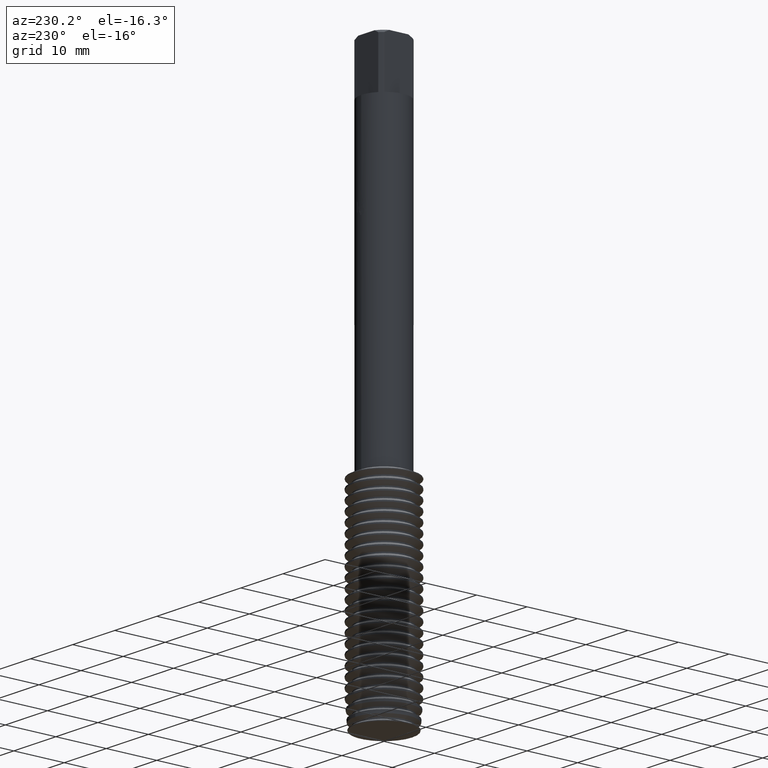
[diagram: clean part render]
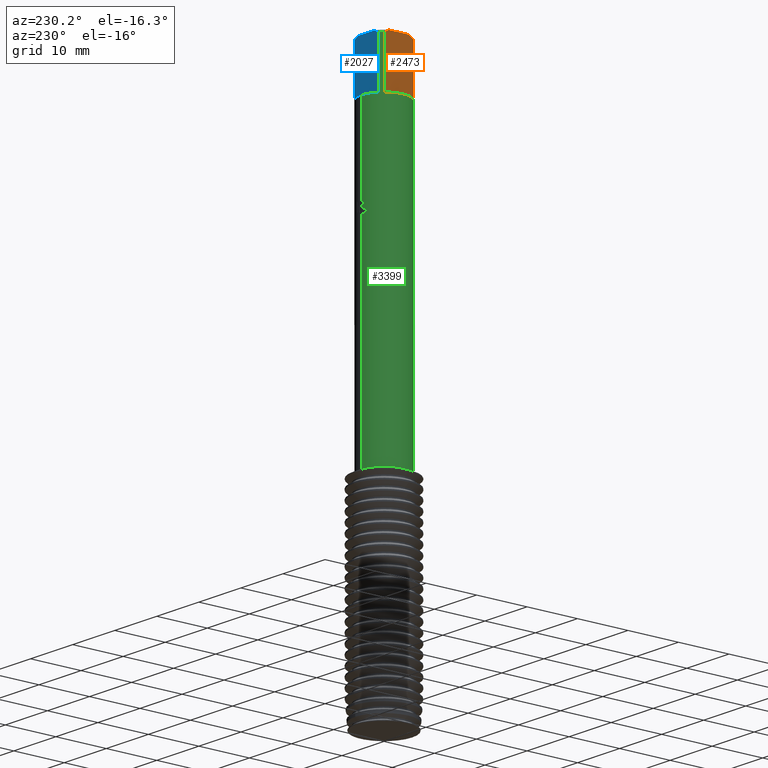
[diagram: same view with three faces highlighted in distinct colors, each labeled with its STEP entity id]
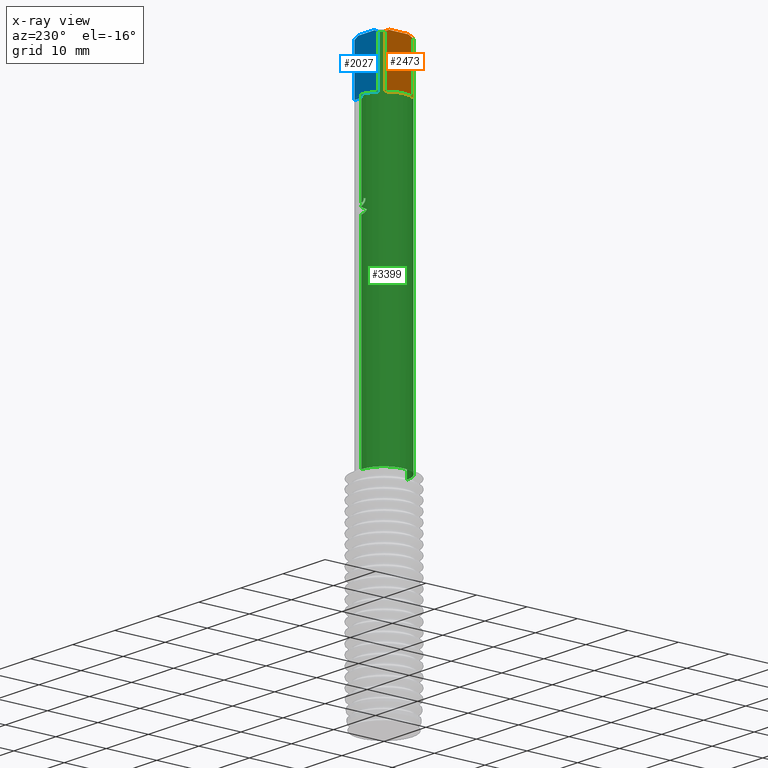
[diagram: x-ray of the same camera — body ghosted, the three highlighted faces saturated]
A machine part, auxiliary view with three faces highlighted in distinct colors.
The next image is the same camera in x-ray (body ghosted, the three faces saturated) — at least one of them is partly hidden behind the body in this view.
Their STEP definitions:

[orange] entity #2473 — the highlighted planar face has unit normal (-1, 0, 0).
#1187=EDGE_CURVE('',#2423,#2649,#3495,.T.);
#2021=EDGE_CURVE('',#2649,#2865,#4417,.T.);
#2093=VERTEX_POINT('',#4494);
#2409=VERTEX_POINT('',#4843);
#2423=VERTEX_POINT('',#4857);
#2473=ADVANCED_FACE('',(#4910),#4911,.T.);
#2521=EDGE_CURVE('',#2093,#2409,#4963,.T.);
#2649=VERTEX_POINT('',#5104);
#2865=VERTEX_POINT('',#5342);
#2935=EDGE_CURVE('',#3387,#2423,#5420,.T.);
#3275=EDGE_CURVE('',#2409,#3387,#5793,.T.);
#3387=VERTEX_POINT('',#5918);
#3433=EDGE_CURVE('',#2865,#2093,#5967,.T.);
#3495=LINE('',#6028,#6029);
#4417=LINE('',#7341,#7342);
#4494=CARTESIAN_POINT('',(-3.5,2.82842712474619,-0.5));
#4843=CARTESIAN_POINT('',(-3.5,1.93649167310371,0.0));
#4857=CARTESIAN_POINT('',(-3.5,-2.82842712474619,-0.5));
#4910=FACE_OUTER_BOUND('',#8069,.T.);
#4911=PLANE('',#8070);
#4963=(B_SPLINE_CURVE(2,(#8152,#8153,#8154),.UNSPECIFIED.,.F.,.F.)B_SPLINE_CURVE_WITH_KNOTS((3,3),(0.0,1.02290682797908),.UNSPECIFIED.)RATIONAL_B_SPLINE_CURVE((1.0,1.00555141588971,1.0))BOUNDED_CURVE()REPRESENTATION_ITEM('')GEOMETRIC_REPRESENTATION_ITEM()CURVE());
#5104=CARTESIAN_POINT('',(-3.5,-2.82842712474619,-10.0));
#5342=CARTESIAN_POINT('',(-3.5,2.82842712474619,-10.0));
#5420=(B_SPLINE_CURVE(2,(#8815,#8816,#8817),.UNSPECIFIED.,.F.,.F.)B_SPLINE_CURVE_WITH_KNOTS((3,3),(0.0,1.02290682797908),.UNSPECIFIED.)RATIONAL_B_SPLINE_CURVE((1.0,1.00555141588971,1.0))BOUNDED_CURVE()REPRESENTATION_ITEM('')GEOMETRIC_REPRESENTATION_ITEM()CURVE());
#5793=LINE('',#9342,#9343);
#5918=CARTESIAN_POINT('',(-3.5,-1.93649167310371,0.0));
#5967=LINE('',#9577,#9578);
#6028=CARTESIAN_POINT('',(-3.5,-2.82842712474619,-5.25));
#6029=VECTOR('',#9644,1.0);
#7341=CARTESIAN_POINT('',(-3.5,0.0,-10.0));
#7342=VECTOR('',#10822,1.0);
#8069=EDGE_LOOP('',(#11450,#11451,#11452,#11453,#11454,#11455));
#8070=AXIS2_PLACEMENT_3D('',#11456,#11457,#11458);
#8152=CARTESIAN_POINT('',(-3.5,2.82842712474619,-0.5));
#8153=CARTESIAN_POINT('',(-3.5,2.3562260032884,-0.203203008829607));
#8154=CARTESIAN_POINT('',(-3.5,1.93649167310371,5.55111512312578E-017));
#8815=CARTESIAN_POINT('',(-3.5,-1.93649167310371,5.55111512312578E-017));
#8816=CARTESIAN_POINT('',(-3.5,-2.3562260032884,-0.203203008829607));
#8817=CARTESIAN_POINT('',(-3.5,-2.82842712474619,-0.5));
#9342=CARTESIAN_POINT('',(-3.5,1.0,0.0));
#9343=VECTOR('',#12573,1.0);
#9577=CARTESIAN_POINT('',(-3.5,2.82842712474619,-5.25));
#9578=VECTOR('',#12817,1.0);
#9644=DIRECTION('',(0.0,0.0,-1.0));
#10822=DIRECTION('',(0.0,1.0,0.0));
#11450=ORIENTED_EDGE('',*,*,#3433,.F.);
#11451=ORIENTED_EDGE('',*,*,#2021,.F.);
#11452=ORIENTED_EDGE('',*,*,#1187,.F.);
#11453=ORIENTED_EDGE('',*,*,#2935,.F.);
#11454=ORIENTED_EDGE('',*,*,#3275,.F.);
#11455=ORIENTED_EDGE('',*,*,#2521,.F.);
#11456=CARTESIAN_POINT('',(-3.5,0.0,-4.5));
#11457=DIRECTION('',(-1.0,0.0,0.0));
#11458=DIRECTION('',(0.0,0.0,-1.0));
#12573=DIRECTION('',(-0.0,-1.0,0.0));
#12817=DIRECTION('',(-0.0,-0.0,1.0));

[blue] entity #2027 — the highlighted planar face has unit normal (0, 1, 0).
#1183=VERTEX_POINT('',#3490);
#1335=EDGE_CURVE('',#1645,#1183,#3663,.T.);
#1493=VERTEX_POINT('',#3834);
#1523=VERTEX_POINT('',#3866);
#1641=EDGE_CURVE('',#1493,#1645,#3997,.T.);
#1645=VERTEX_POINT('',#4001);
#2027=ADVANCED_FACE('',(#4423),#4424,.T.);
#2073=EDGE_CURVE('',#1523,#2821,#4473,.T.);
#2325=EDGE_CURVE('',#3361,#1523,#4753,.T.);
#2517=EDGE_CURVE('',#1183,#3361,#4959,.T.);
#2821=VERTEX_POINT('',#5294);
#2915=EDGE_CURVE('',#2821,#1493,#5399,.T.);
#3361=VERTEX_POINT('',#5887);
#3490=CARTESIAN_POINT('',(-1.93649167310371,3.5,0.0));
#3663=LINE('',#6253,#6254);
#3834=CARTESIAN_POINT('',(2.82842712474619,3.5,-0.5));
#3866=CARTESIAN_POINT('',(-2.82842712474619,3.5,-10.0));
#3997=(B_SPLINE_CURVE(2,(#6768,#6769,#6770),.UNSPECIFIED.,.F.,.F.)B_SPLINE_CURVE_WITH_KNOTS((3,3),(0.0,1.02290682797908),.UNSPECIFIED.)RATIONAL_B_SPLINE_CURVE((1.0,1.00555141588971,1.0))BOUNDED_CURVE()REPRESENTATION_ITEM('')GEOMETRIC_REPRESENTATION_ITEM()CURVE());
#4001=CARTESIAN_POINT('',(1.93649167310371,3.5,0.0));
#4423=FACE_OUTER_BOUND('',#7352,.T.);
#4424=PLANE('',#7353);
#4473=LINE('',#7450,#7451);
#4753=LINE('',#7854,#7855);
#4959=(B_SPLINE_CURVE(2,(#8138,#8139,#8140),.UNSPECIFIED.,.F.,.F.)B_SPLINE_CURVE_WITH_KNOTS((3,3),(0.0,1.02290682797908),.UNSPECIFIED.)RATIONAL_B_SPLINE_CURVE((1.0,1.00555141588971,1.0))BOUNDED_CURVE()REPRESENTATION_ITEM('')GEOMETRIC_REPRESENTATION_ITEM()CURVE());
#5294=CARTESIAN_POINT('',(2.82842712474619,3.5,-10.0));
#5399=LINE('',#8784,#8785);
#5887=CARTESIAN_POINT('',(-2.82842712474619,3.5,-0.5));
#6253=CARTESIAN_POINT('',(0.0,3.5,0.0));
#6254=VECTOR('',#9897,1.0);
#6768=CARTESIAN_POINT('',(2.82842712474619,3.5,-0.5));
#6769=CARTESIAN_POINT('',(2.3562260032884,3.5,-0.203203008829607));
#6770=CARTESIAN_POINT('',(1.93649167310371,3.5,5.55111512312578E-017));
#7352=EDGE_LOOP('',(#10826,#10827,#10828,#10829,#10830,#10831));
#7353=AXIS2_PLACEMENT_3D('',#10832,#10833,#10834);
#7450=CARTESIAN_POINT('',(0.0,3.5,-10.0));
#7451=VECTOR('',#10884,1.0);
#7854=CARTESIAN_POINT('',(-2.82842712474619,3.5,-5.25));
#7855=VECTOR('',#11287,1.0);
#8138=CARTESIAN_POINT('',(-1.93649167310371,3.5,5.55111512312578E-017));
#8139=CARTESIAN_POINT('',(-2.3562260032884,3.5,-0.203203008829607));
#8140=CARTESIAN_POINT('',(-2.82842712474619,3.5,-0.5));
#8784=CARTESIAN_POINT('',(2.82842712474619,3.5,-5.25));
#8785=VECTOR('',#12072,1.0);
#9897=DIRECTION('',(-1.0,0.0,0.0));
#10826=ORIENTED_EDGE('',*,*,#2325,.F.);
#10827=ORIENTED_EDGE('',*,*,#2517,.F.);
#10828=ORIENTED_EDGE('',*,*,#1335,.F.);
#10829=ORIENTED_EDGE('',*,*,#1641,.F.);
#10830=ORIENTED_EDGE('',*,*,#2915,.F.);
#10831=ORIENTED_EDGE('',*,*,#2073,.F.);
#10832=CARTESIAN_POINT('',(0.0,3.5,-4.5));
#10833=DIRECTION('',(0.0,1.0,0.0));
#10834=DIRECTION('',(0.0,0.0,-1.0));
#10884=DIRECTION('',(1.0,0.0,0.0));
#11287=DIRECTION('',(0.0,0.0,-1.0));
#12072=DIRECTION('',(-0.0,-0.0,1.0));

[green] entity #3399 — the highlighted cylindrical surface (edge-blend (fillet) strip) has radius 4.5 mm, axis along (-0, -0, 1).
#1187=EDGE_CURVE('',#2423,#2649,#3495,.T.);
#1253=VERTEX_POINT('',#3570);
#1407=EDGE_CURVE('',#3405,#3081,#3742,.T.);
#1413=VERTEX_POINT('',#3748);
#1469=EDGE_CURVE('',#3081,#1515,#3809,.T.);
#1473=EDGE_CURVE('',#2649,#2865,#3813,.T.);
#1515=VERTEX_POINT('',#3858);
#1523=VERTEX_POINT('',#3866);
#1637=VERTEX_POINT('',#3993);
#1777=VERTEX_POINT('',#4149);
#1869=EDGE_CURVE('',#1515,#1637,#4254,.T.);
#1903=VERTEX_POINT('',#4291);
#1953=VERTEX_POINT('',#4346);
#2041=VERTEX_POINT('',#4438);
#2093=VERTEX_POINT('',#4494);
#2123=VERTEX_POINT('',#4527);
#2161=EDGE_CURVE('',#2831,#2423,#4570,.T.);
#2185=EDGE_CURVE('',#1523,#1953,#4598,.T.);
#2251=EDGE_CURVE('',#2123,#2557,#4673,.T.);
#2325=EDGE_CURVE('',#3361,#1523,#4753,.T.);
#2423=VERTEX_POINT('',#4857);
#2499=EDGE_CURVE('',#2757,#1413,#4941,.T.);
#2557=VERTEX_POINT('',#5002);
#2649=VERTEX_POINT('',#5104);
#2745=EDGE_CURVE('',#1413,#1777,#5210,.T.);
#2757=VERTEX_POINT('',#5223);
#2779=EDGE_CURVE('',#1637,#2123,#5249,.T.);
#2831=VERTEX_POINT('',#5304);
#2837=EDGE_CURVE('',#1777,#2831,#5310,.T.);
#2865=VERTEX_POINT('',#5342);
#2893=EDGE_CURVE('',#1253,#1903,#5375,.T.);
#2925=EDGE_CURVE('',#2557,#2041,#5410,.T.);
#3081=VERTEX_POINT('',#5578);
#3169=EDGE_CURVE('',#2041,#1253,#5678,.T.);
#3265=EDGE_CURVE('',#2757,#1903,#5781,.T.);
#3269=EDGE_CURVE('',#2093,#3361,#5786,.T.);
#3361=VERTEX_POINT('',#5887);
#3399=ADVANCED_FACE('',(#5931),#5932,.T.);
#3405=VERTEX_POINT('',#5939);
#3433=EDGE_CURVE('',#2865,#2093,#5967,.T.);
#3455=EDGE_CURVE('',#1953,#3405,#5990,.T.);
#3495=LINE('',#6028,#6029);
#3570=CARTESIAN_POINT('',(1.92777955702055E-015,4.5,-28.977922824093));
#3742=B_SPLINE_CURVE_WITH_KNOTS('',3,(#6365,#6366,#6367,#6368,#6369,#6370,#6371,#6372,#6373,#6374,#6375,#6376,#6377,#6378,#6379,#6380,#6381,#6382,#6383,#6384,#6385,#6386,#6387,#6388,#6389,#6390,#6391),.UNSPECIFIED.,.F.,.F.,(4,2,3,2,2,2,2,2,2,2,2,2,4),(-0.488237494321567,-0.244118747160783,0.0,0.24411874716078,0.48823749432156,0.732868933443247,0.977500372564934,1.22127161368314,1.46504285480134,1.70906790328601,1.95309295177068,2.19711800025534,2.44114304874001),.UNSPECIFIED.);
#3748=CARTESIAN_POINT('',(5.5107285922007E-016,-4.5,-10.0));
#3809=B_SPLINE_CURVE_WITH_KNOTS('',3,(#6478,#6479,#6480,#6481,#6482,#6483,#6484,#6485,#6486,#6487,#6488,#6489,#6490,#6491,#6492,#6493,#6494,#6495,#6496,#6497,#6498,#6499,#6500,#6501,#6502,#6503,#6504),.UNSPECIFIED.,.F.,.F.,(4,2,3,2,2,2,2,2,2,2,2,2,4),(-0.488237494321567,-0.244118747160783,0.0,0.24411874716078,0.48823749432156,0.732868933443247,0.977500372564934,1.22127161368314,1.46504285480134,1.70906790328601,1.95309295177068,2.19711800025534,2.44114304874001),.UNSPECIFIED.);
#3813=CIRCLE('',#6511,4.5);
#3858=CARTESIAN_POINT('',(-0.506100591205212,4.47144967449951,-26.5354099788274));
#3866=CARTESIAN_POINT('',(-2.82842712474619,3.5,-10.0));
#3993=CARTESIAN_POINT('',(-0.931566063517916,4.40252026336072,-26.5354099788274));
#4149=CARTESIAN_POINT('',(-2.82842712474619,-3.5,-10.0));
#4254=CIRCLE('',#7126,4.5);
#4291=CARTESIAN_POINT('',(0.0,4.5,-69.3649147038914));
#4346=CARTESIAN_POINT('',(-5.5107285922007E-016,4.5,-10.0));
#4438=CARTESIAN_POINT('',(-1.2033474771987,4.33612209804101,-28.3848723517915));
#4494=CARTESIAN_POINT('',(-3.5,2.82842712474619,-0.5));
#4527=CARTESIAN_POINT('',(-4.56705888889234E-016,4.5,-27.6000721396693));
#4570=CIRCLE('',#7576,4.5);
#4598=CIRCLE('',#7614,4.5);
#4673=LINE('',#7719,#7720);
#4753=LINE('',#7854,#7855);
#4857=CARTESIAN_POINT('',(-3.5,-2.82842712474619,-0.5));
#4941=LINE('',#8109,#8110);
#5002=CARTESIAN_POINT('',(-1.78148551914432E-015,4.5,-27.7916020202921));
#5104=CARTESIAN_POINT('',(-3.5,-2.82842712474619,-10.0));
#5210=CIRCLE('',#8523,4.5);
#5223=CARTESIAN_POINT('',(5.5107285922007E-016,-4.5,-69.3649147038914));
#5249=B_SPLINE_CURVE_WITH_KNOTS('',3,(#8570,#8571,#8572,#8573,#8574,#8575,#8576,#8577,#8578,#8579,#8580,#8581,#8582,#8583),.UNSPECIFIED.,.F.,.F.,(4,2,2,2,2,2,4),(2.81999754028323,3.22260604537047,3.6252145504577,4.02782305554494,4.42960823678614,4.83139341802734,5.23541269591623),.UNSPECIFIED.);
#5304=CARTESIAN_POINT('',(-2.82842712474619,-3.5,-0.5));
#5310=LINE('',#8664,#8665);
#5342=CARTESIAN_POINT('',(-3.5,2.82842712474619,-10.0));
#5375=LINE('',#8749,#8750);
#5410=ELLIPSE('',#8800,5.01717794419287,4.5);
#5578=CARTESIAN_POINT('',(-0.437741049944741,4.47865859082753,-26.8289553734705));
#5678=B_SPLINE_CURVE_WITH_KNOTS('',3,(#9176,#9177,#9178,#9179,#9180,#9181,#9182,#9183,#9184,#9185,#9186,#9187,#9188,#9189),.UNSPECIFIED.,.F.,.F.,(4,2,2,2,2,2,4),(5.00928657264585,5.56602959440372,6.12289935657728,6.40133423766406,6.67976911875084,6.95779012540738,7.23581113206391),.UNSPECIFIED.);
#5781=CIRCLE('',#9328,4.5);
#5786=CIRCLE('',#9334,4.5);
#5887=CARTESIAN_POINT('',(-2.82842712474619,3.5,-0.5));
#5931=FACE_OUTER_BOUND('',#9531,.T.);
#5932=CYLINDRICAL_SURFACE('',#9532,4.5);
#5939=CARTESIAN_POINT('',(-9.66146156737395E-015,4.5,-27.1709419305969));
#5967=LINE('',#9577,#9578);
#5990=LINE('',#9613,#9614);
#6028=CARTESIAN_POINT('',(-3.5,-2.82842712474619,-5.25));
#6029=VECTOR('',#9644,1.0);
#6365=CARTESIAN_POINT('',(0.598610493082054,4.46000734052894,-26.082236711173));
#6366=CARTESIAN_POINT('',(0.655861677259137,4.45232323667594,-26.1395499545912));
#6367=CARTESIAN_POINT('',(0.705567749493117,4.44446773270288,-26.2121492432381));
#6368=CARTESIAN_POINT('',(0.771571740116608,4.43348579996644,-26.3714202755976));
#6369=CARTESIAN_POINT('',(0.78786088306971,4.43049379064327,-26.4581048956078));
#6370=CARTESIAN_POINT('',(0.78786088306971,4.43049379064327,-26.5394778113281));
#6371=CARTESIAN_POINT('',(0.78786088306971,4.43049379064327,-26.6208507270484));
#6372=CARTESIAN_POINT('',(0.771571740116608,4.43348579996644,-26.7075353470586));
#6373=CARTESIAN_POINT('',(0.705567749493119,4.44446773270288,-26.8668063794181));
#6374=CARTESIAN_POINT('',(0.655861677259135,4.45232323667594,-26.939405668065));
#6375=CARTESIAN_POINT('',(0.541239071429477,4.4677075823407,-27.0541525227121));
#6376=CARTESIAN_POINT('',(0.468577077404,4.47625259584298,-27.1039697560256));
#6377=CARTESIAN_POINT('',(0.309153440232772,4.49008083772597,-27.170130310445));
#6378=CARTESIAN_POINT('',(0.222377597844716,4.49524166173767,-27.1864649424972));
#6379=CARTESIAN_POINT('',(0.0596564980879217,4.5003381889972,-27.1864649424972));
#6380=CARTESIAN_POINT('',(-0.026986801866637,4.5006247904204,-27.1702329320859));
#6381=CARTESIAN_POINT('',(-0.18633827630776,4.49684665499257,-27.1042445557697));
#6382=CARTESIAN_POINT('',(-0.259050734958625,4.49290602438602,-27.054491488258));
#6383=CARTESIAN_POINT('',(-0.373922504658752,4.48480776485445,-26.9396992737441));
#6384=CARTESIAN_POINT('',(-0.423740605016268,4.4801280654383,-26.8669685517597));
#6385=CARTESIAN_POINT('',(-0.489837971487065,4.47338376984478,-26.7075321781649));
#6386=CARTESIAN_POINT('',(-0.506113379268522,4.4714482270653,-26.6208194941563));
#6387=CARTESIAN_POINT('',(-0.506113379268522,4.4714482270653,-26.4581361284999));
#6388=CARTESIAN_POINT('',(-0.489837971487064,4.47338376984478,-26.3714234444913));
#6389=CARTESIAN_POINT('',(-0.423740605016268,4.4801280654383,-26.2119870708965));
#6390=CARTESIAN_POINT('',(-0.373922504658752,4.48480776485445,-26.1392563489121));
#6391=CARTESIAN_POINT('',(-0.316456735098648,4.4888590014402,-26.081830377642));
#6478=CARTESIAN_POINT('',(0.598610493082054,4.46000734052894,-26.082236711173));
#6479=CARTESIAN_POINT('',(0.655861677259137,4.45232323667594,-26.1395499545912));
#6480=CARTESIAN_POINT('',(0.705567749493117,4.44446773270288,-26.2121492432381));
#6481=CARTESIAN_POINT('',(0.771571740116608,4.43348579996644,-26.3714202755976));
#6482=CARTESIAN_POINT('',(0.78786088306971,4.43049379064327,-26.4581048956078));
#6483=CARTESIAN_POINT('',(0.78786088306971,4.43049379064327,-26.5394778113281));
#6484=CARTESIAN_POINT('',(0.78786088306971,4.43049379064327,-26.6208507270484));
#6485=CARTESIAN_POINT('',(0.771571740116608,4.43348579996644,-26.7075353470586));
#6486=CARTESIAN_POINT('',(0.705567749493119,4.44446773270288,-26.8668063794181));
#6487=CARTESIAN_POINT('',(0.655861677259135,4.45232323667594,-26.939405668065));
#6488=CARTESIAN_POINT('',(0.541239071429477,4.4677075823407,-27.0541525227121));
#6489=CARTESIAN_POINT('',(0.468577077404,4.47625259584298,-27.1039697560256));
#6490=CARTESIAN_POINT('',(0.309153440232772,4.49008083772597,-27.170130310445));
#6491=CARTESIAN_POINT('',(0.222377597844716,4.49524166173767,-27.1864649424972));
#6492=CARTESIAN_POINT('',(0.0596564980879217,4.5003381889972,-27.1864649424972));
#6493=CARTESIAN_POINT('',(-0.026986801866637,4.5006247904204,-27.1702329320859));
#6494=CARTESIAN_POINT('',(-0.18633827630776,4.49684665499257,-27.1042445557697));
#6495=CARTESIAN_POINT('',(-0.259050734958625,4.49290602438602,-27.054491488258));
#6496=CARTESIAN_POINT('',(-0.373922504658752,4.48480776485445,-26.9396992737441));
#6497=CARTESIAN_POINT('',(-0.423740605016268,4.4801280654383,-26.8669685517597));
#6498=CARTESIAN_POINT('',(-0.489837971487065,4.47338376984478,-26.7075321781649));
#6499=CARTESIAN_POINT('',(-0.506113379268522,4.4714482270653,-26.6208194941563));
#6500=CARTESIAN_POINT('',(-0.506113379268522,4.4714482270653,-26.4581361284999));
#6501=CARTESIAN_POINT('',(-0.489837971487064,4.47338376984478,-26.3714234444913));
#6502=CARTESIAN_POINT('',(-0.423740605016268,4.4801280654383,-26.2119870708965));
#6503=CARTESIAN_POINT('',(-0.373922504658752,4.48480776485445,-26.1392563489121));
#6504=CARTESIAN_POINT('',(-0.316456735098648,4.4888590014402,-26.081830377642));
#6511=AXIS2_PLACEMENT_3D('',#10063,#10064,#10065);
#7126=AXIS2_PLACEMENT_3D('',#10653,#10654,#10655);
#7576=AXIS2_PLACEMENT_3D('',#11005,#11006,#11007);
#7614=AXIS2_PLACEMENT_3D('',#11060,#11061,#11062);
#7719=CARTESIAN_POINT('',(-5.5107285922007E-016,4.5,-49.6824573519457));
#7720=VECTOR('',#11184,1.0);
#7854=CARTESIAN_POINT('',(-2.82842712474619,3.5,-5.25));
#7855=VECTOR('',#11287,1.0);
#8109=CARTESIAN_POINT('',(5.5107285922007E-016,-4.5,-49.6824573519457));
#8110=VECTOR('',#11509,1.0);
#8523=AXIS2_PLACEMENT_3D('',#11821,#11822,#11823);
#8570=CARTESIAN_POINT('',(-0.850223392208597,4.41895012229617,-26.1354226435562));
#8571=CARTESIAN_POINT('',(-0.904683437653216,4.40847179893042,-26.2666053947802));
#8572=CARTESIAN_POINT('',(-0.931598116111678,4.40251348096257,-26.4094688396304));
#8573=CARTESIAN_POINT('',(-0.931598116111678,4.40251348096257,-26.6778745096886));
#8574=CARTESIAN_POINT('',(-0.904683437653217,4.40847179893042,-26.8207379545388));
#8575=CARTESIAN_POINT('',(-0.795763346763997,4.42942844566193,-27.083103456987));
#8576=CARTESIAN_POINT('',(-0.71377843594699,4.44405474160097,-27.2026436084961));
#8577=CARTESIAN_POINT('',(-0.524976251458225,4.47028689771802,-27.3912171086565));
#8578=CARTESIAN_POINT('',(-0.405504471778917,4.4836153925366,-27.4730148223131));
#8579=CARTESIAN_POINT('',(-0.143384369006626,4.49963129451709,-27.5816323467314));
#8580=CARTESIAN_POINT('',(-0.000707766739499183,4.50199248263676,-27.6084317670779));
#8581=CARTESIAN_POINT('',(0.267776092112686,4.49404414824457,-27.6084317670779));
#8582=CARTESIAN_POINT('',(0.410798117555773,4.48315729513745,-27.5813649320142));
#8583=CARTESIAN_POINT('',(0.541951703170922,4.46724617090105,-27.5268324008977));
#8664=CARTESIAN_POINT('',(-2.82842712474619,-3.5,-5.25));
#8665=VECTOR('',#11923,1.0);
#8749=CARTESIAN_POINT('',(-5.5107285922007E-016,4.5,-49.6824573519457));
#8750=VECTOR('',#12040,1.0);
#8800=AXIS2_PLACEMENT_3D('',#12091,#12092,#12093);
#9176=CARTESIAN_POINT('',(-1.37898170158697,4.28350434418926,-28.0751271965754));
#9177=CARTESIAN_POINT('',(-1.30401050073994,4.30763968568169,-28.2554290227717));
#9178=CARTESIAN_POINT('',(-1.19150514881565,4.34143094124777,-28.4192705231025));
#9179=CARTESIAN_POINT('',(-0.932859747393676,4.40425792748471,-28.6780135031786));
#9180=CARTESIAN_POINT('',(-0.768955753958504,4.43754641363356,-28.790648069192));
#9181=CARTESIAN_POINT('',(-0.498353399802766,4.47324509387064,-28.9032253728295));
#9182=CARTESIAN_POINT('',(-0.404091648536853,4.48283151844287,-28.9317231620603));
#9183=CARTESIAN_POINT('',(-0.214084281205442,4.49591330028805,-28.9691882523958));
#9184=CARTESIAN_POINT('',(-0.118336086251352,4.4994011344625,-28.9781451001578));
#9185=CARTESIAN_POINT('',(0.067146225504712,4.50045328753729,-28.9781451001578));
#9186=CARTESIAN_POINT('',(0.162791105789785,4.49805968638437,-28.9692143814867));
#9187=CARTESIAN_POINT('',(0.352656619267638,4.48716783676345,-28.9318200789286));
#9188=CARTESIAN_POINT('',(0.446879650707238,4.47867716616223,-28.9033664657591));
#9189=CARTESIAN_POINT('',(0.53706313935625,4.46783652166737,-28.8658822146561));
#9328=AXIS2_PLACEMENT_3D('',#12549,#12550,#12551);
#9334=AXIS2_PLACEMENT_3D('',#12561,#12562,#12563);
#9531=EDGE_LOOP('',(#12753,#12754,#12755,#12756,#12757,#12758,#12759,#12760,#12761,#12762,#12763,#12764,#12765,#12766,#12767,#12768,#12769,#12770,#12771,#12772));
#9532=AXIS2_PLACEMENT_3D('',#12773,#12774,#12775);
#9577=CARTESIAN_POINT('',(-3.5,2.82842712474619,-5.25));
#9578=VECTOR('',#12817,1.0);
#9613=CARTESIAN_POINT('',(-5.5107285922007E-016,4.5,-49.6824573519457));
#9614=VECTOR('',#12839,1.0);
#9644=DIRECTION('',(0.0,0.0,-1.0));
#10063=CARTESIAN_POINT('',(0.0,0.0,-10.0));
#10064=DIRECTION('',(0.0,0.0,-1.0));
#10065=DIRECTION('',(0.0,1.0,0.0));
#10653=CARTESIAN_POINT('',(0.0,0.0,-26.5354099788274));
#10654=DIRECTION('',(0.0,-0.0,1.0));
#10655=DIRECTION('',(0.0,1.0,0.0));
#11005=CARTESIAN_POINT('',(0.0,0.0,-0.5));
#11006=DIRECTION('',(0.0,0.0,-1.0));
#11007=DIRECTION('',(0.0,1.0,0.0));
#11060=CARTESIAN_POINT('',(0.0,0.0,-10.0));
#11061=DIRECTION('',(0.0,0.0,-1.0));
#11062=DIRECTION('',(0.0,1.0,0.0));
#11184=DIRECTION('',(0.0,0.0,-1.0));
#11287=DIRECTION('',(0.0,0.0,-1.0));
#11509=DIRECTION('',(-0.0,-0.0,1.0));
#11821=CARTESIAN_POINT('',(0.0,0.0,-10.0));
#11822=DIRECTION('',(0.0,0.0,-1.0));
#11823=DIRECTION('',(0.0,1.0,0.0));
#11923=DIRECTION('',(-0.0,-0.0,1.0));
#12040=DIRECTION('',(0.0,0.0,-1.0));
#12091=CARTESIAN_POINT('',(0.0,0.0,-27.7916020202921));
#12092=DIRECTION('',(-0.442195774284071,0.0,0.896918556617774));
#12093=DIRECTION('',(0.896918556617774,-0.0,0.442195774284071));
#12549=CARTESIAN_POINT('',(0.0,0.0,-69.3649147038914));
#12550=DIRECTION('',(0.0,0.0,-1.0));
#12551=DIRECTION('',(0.0,1.0,0.0));
#12561=CARTESIAN_POINT('',(0.0,0.0,-0.5));
#12562=DIRECTION('',(0.0,0.0,-1.0));
#12563=DIRECTION('',(0.0,1.0,0.0));
#12753=ORIENTED_EDGE('',*,*,#3455,.T.);
#12754=ORIENTED_EDGE('',*,*,#1407,.T.);
#12755=ORIENTED_EDGE('',*,*,#1469,.T.);
#12756=ORIENTED_EDGE('',*,*,#1869,.T.);
#12757=ORIENTED_EDGE('',*,*,#2779,.T.);
#12758=ORIENTED_EDGE('',*,*,#2251,.T.);
#12759=ORIENTED_EDGE('',*,*,#2925,.T.);
#12760=ORIENTED_EDGE('',*,*,#3169,.T.);
#12761=ORIENTED_EDGE('',*,*,#2893,.T.);
#12762=ORIENTED_EDGE('',*,*,#3265,.F.);
#12763=ORIENTED_EDGE('',*,*,#2499,.T.);
#12764=ORIENTED_EDGE('',*,*,#2745,.T.);
#12765=ORIENTED_EDGE('',*,*,#2837,.T.);
#12766=ORIENTED_EDGE('',*,*,#2161,.T.);
#12767=ORIENTED_EDGE('',*,*,#1187,.T.);
#12768=ORIENTED_EDGE('',*,*,#1473,.T.);
#12769=ORIENTED_EDGE('',*,*,#3433,.T.);
#12770=ORIENTED_EDGE('',*,*,#3269,.T.);
#12771=ORIENTED_EDGE('',*,*,#2325,.T.);
#12772=ORIENTED_EDGE('',*,*,#2185,.T.);
#12773=CARTESIAN_POINT('',(0.0,0.0,-49.6824573519457));
#12774=DIRECTION('',(-0.0,-0.0,1.0));
#12775=DIRECTION('',(0.0,1.0,0.0));
#12817=DIRECTION('',(-0.0,-0.0,1.0));
#12839=DIRECTION('',(0.0,0.0,-1.0));